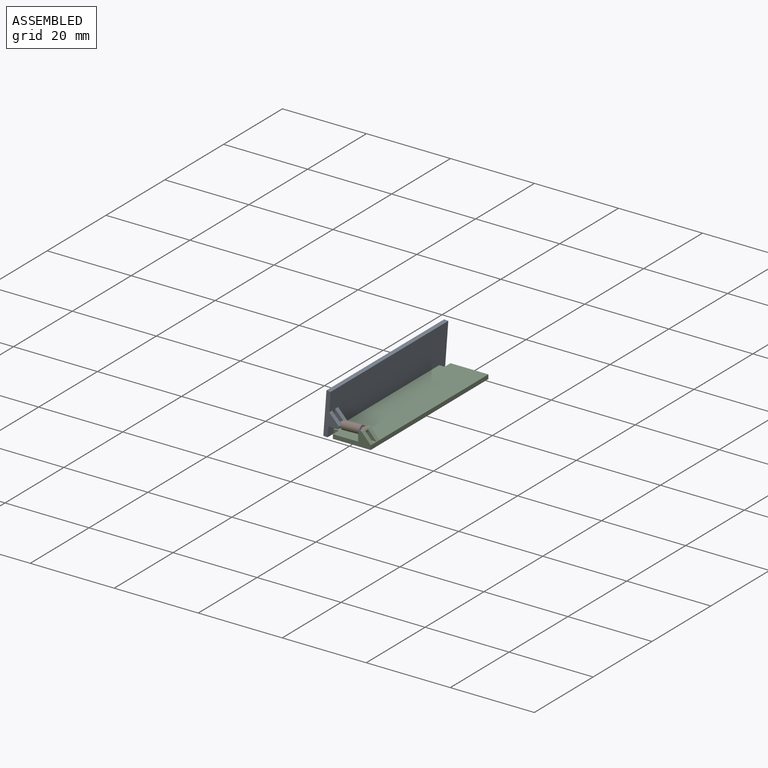
[diagram: assembled view]
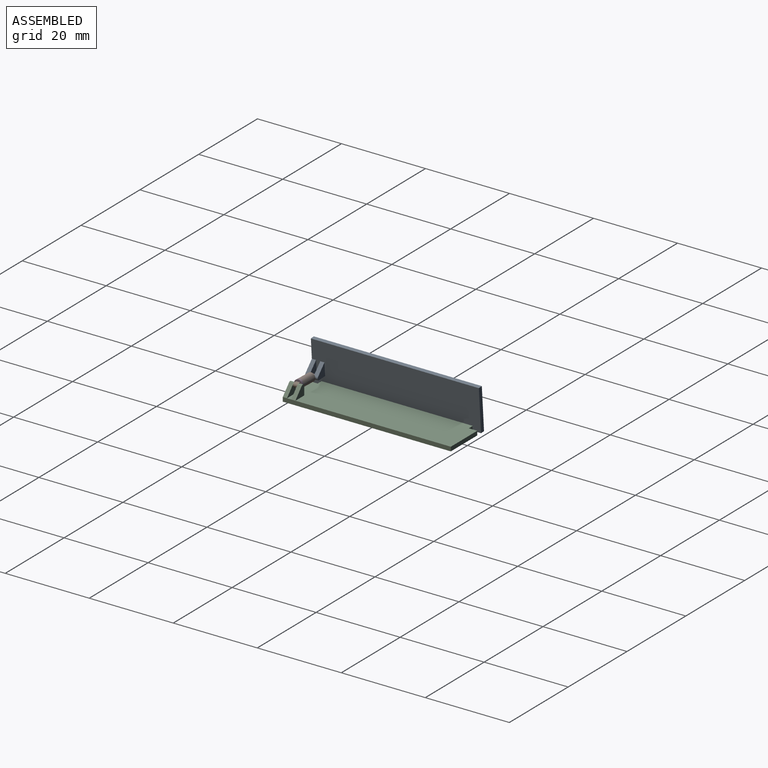
[diagram: assembled view, second angle]
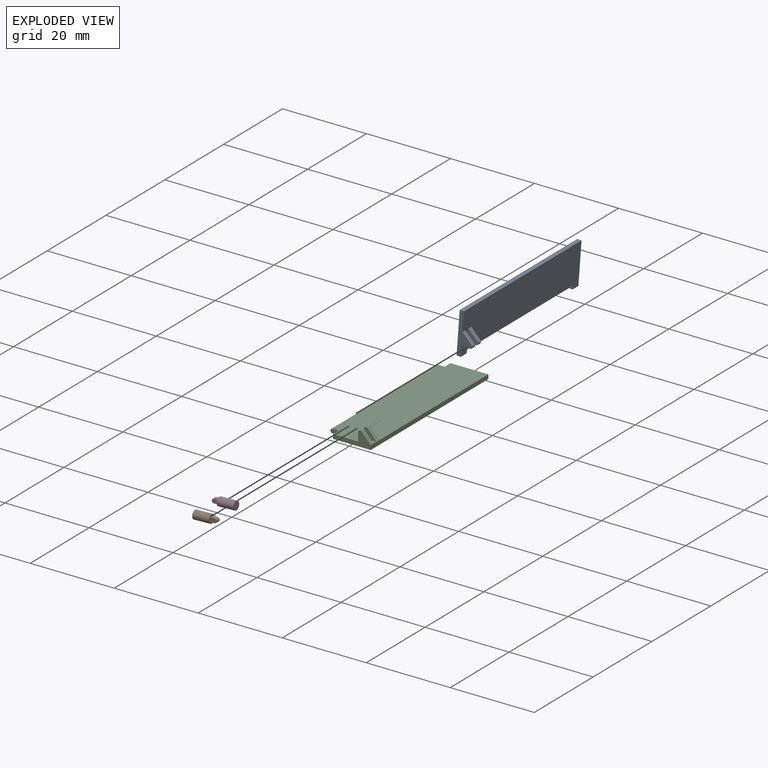
[diagram: exploded view]
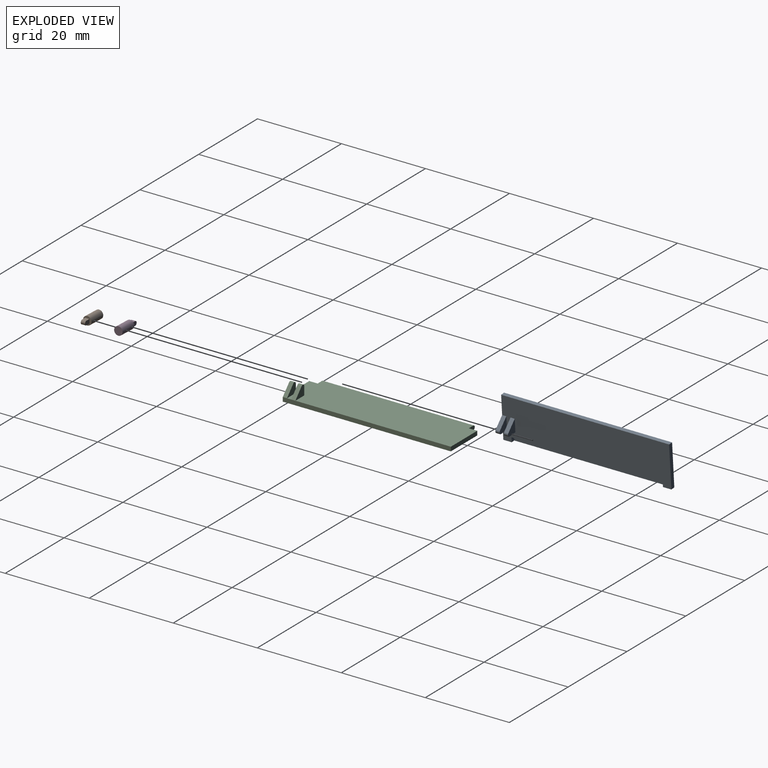
[diagram: exploded view, second angle]
ASSEMBLY  parts=4 mates=6
PART A: 20 faces, bbox 10x40x3.5 mm
  f0: plane 40x10mm, normal (0,0,1), area 354.4mm2, adj f1,f2,f3,f5,f8,f9,f10,f11
  f1: plane 40x1mm, normal (1,0,0), area 9.4mm2, adj f0,f3,f4,f7,f8,f9,f10
  f2: plane 40x1mm, normal (-1,0,0), area 40mm2, adj f0,f3,f4,f9
  f3: plane 10x3.5mm, normal (0,-1,0), area 14.6mm2, adj f0,f1,f2,f4,f11,f12,f13
  f4: plane 40x10mm, normal (0,0,-1), area 400mm2, adj f1,f2,f3,f9
  f5: plane 36x0.25mm, normal (1,0,0), area 9mm2, adj f0,f6,f8,f10
  f6: cylinder r=0.6mm len=36mm, axis (0,-1,0), area 33.9mm2, adj f5,f7,f8,f10
  f7: plane 36x0.5mm, normal (0,0,1), area 18mm2, adj f1,f6,f8,f10
  f8: plane 1.1x0.85mm, normal (0,1,0), area 0.9mm2, adj f0,f1,f5,f6,f7
  f9: plane 10x1mm, normal (0,1,0), area 10mm2, adj f0,f1,f2,f4
  f10: plane 1.1x0.85mm, normal (0,-1,0), area 0.9mm2, adj f0,f1,f5,f6,f7
  f11: plane 2x1mm, normal (1,0,0), area 2mm2, adj f0,f3,f12,f14
  f12: cylinder r=0.5mm len=1mm, axis (0,-1,0), area 1.2mm2, adj f3,f11,f13,f14
  f13: plane 2.34x2.13mm, normal (-0.74,0,0.67), area 3.2mm2, adj f0,f3,f12,f14
  f14: plane 3x2.5mm, normal (0,1,0), area 4.6mm2, adj f0,f11,f12,f13
  f15: plane 2.34x2.13mm, normal (-0.74,0,0.67), area 3.2mm2, adj f0,f16,f18,f19
  f16: cylinder r=0.5mm len=1mm, axis (0,-1,0), area 1.2mm2, adj f15,f17,f18,f19
  f17: plane 2x1mm, normal (1,0,0), area 2mm2, adj f0,f16,f18,f19
  f18: plane 3x2.5mm, normal (0,1,0), area 4.6mm2, adj f0,f15,f16,f17
  f19: plane 3x2.5mm, normal (0,-1,0), area 4.6mm2, adj f0,f15,f16,f17
PART B: 8 faces, bbox 2x5.5x2 mm
  f0: plane 2x2mm, normal (0,1,0), area 2.1mm2, adj f1,f4,f5,f6,f7
  f1: cylinder r=1mm len=4mm, axis (0,1,0), area 25.1mm2, adj f0,f2
  f2: plane 2x2mm, normal (0,-1,0), area 3.1mm2, adj f1
  f3: cylinder r=0.5mm len=1mm, axis (-1,0,0), area 1.6mm2, adj f4,f5,f6,f7
  f4: plane 1x1mm, normal (0,0,1), area 1mm2, adj f0,f3,f6,f7
  f5: plane 1x1mm, normal (0,0,-1), area 1mm2, adj f0,f3,f6,f7
  f6: plane 1.5x1mm, normal (1,0,0), area 1.4mm2, adj f0,f3,f4,f5
  f7: plane 1.5x1mm, normal (-1,0,0), area 1.4mm2, adj f0,f3,f4,f5
PART C: 19 faces, bbox 11x40x3.5 mm
  f0: plane 40x10.5mm, normal (0,0,1), area 408mm2, adj f1,f2,f4,f5,f6,f7,f8,f9
  f1: plane 9x3.5mm, normal (0,-1,0), area 13.6mm2, adj f0,f2,f3,f5,f10,f11,f12
  f2: plane 40x1mm, normal (1,0,0), area 40mm2, adj f0,f1,f3,f7,f12,f15
  f3: plane 40x10.5mm, normal (0,0,-1), area 414mm2, adj f1,f2,f4,f5,f6,f7,f8,f9
  f4: cylinder r=0.5mm len=36mm, axis (0,-1,0), area 56.5mm2, adj f0,f3,f6,f9
  f5: plane 2x1mm, normal (-1,0,0), area 2mm2, adj f0,f1,f3,f6
  f6: plane 2x1mm, normal (0,-1,0), area 1.9mm2, adj f0,f3,f4,f5
  f7: plane 9x1mm, normal (0,1,0), area 9mm2, adj f0,f2,f3,f8
  f8: plane 2x1mm, normal (-1,0,0), area 2mm2, adj f0,f3,f7,f9
  f9: plane 2x1mm, normal (0,1,0), area 1.9mm2, adj f0,f3,f4,f8
  f10: cylinder r=0.5mm len=1mm, axis (0,-1,0), area 1.2mm2, adj f1,f11,f12,f13
  f11: plane 2x1mm, normal (-1,0,0), area 2mm2, adj f0,f1,f10,f13
  f12: plane 2.34x2.13mm, normal (0.74,0,0.67), area 3.2mm2, adj f1,f2,f10,f13
  f13: plane 3x2.5mm, normal (0,1,0), area 4.6mm2, adj f0,f10,f11,f12
  f14: cylinder r=0.5mm len=1mm, axis (0,-1,0), area 1.2mm2, adj f15,f16,f17,f18
  f15: plane 2.34x2.13mm, normal (0.74,0,0.67), area 3.2mm2, adj f2,f14,f17,f18
  f16: plane 2x1mm, normal (-1,0,0), area 2mm2, adj f0,f14,f17,f18
  f17: plane 3x2.5mm, normal (0,1,0), area 4.6mm2, adj f0,f14,f15,f16
  f18: plane 3x2.5mm, normal (0,-1,0), area 4.6mm2, adj f0,f14,f15,f16
PART D: same geometry as B
PLACE A rot(axis=(0,1,0),94.3deg) t=(-5.3,-20.27,9.03)mm
PLACE B rot(axis=(0.02,-0.02,-1),90deg) t=(1.74,-18.77,1.97)mm
PLACE C t=(-4.76,-20.27,-1)mm
PLACE D rot(axis=(-0.71,0.71,-0.01),178.7deg) t=(-1.83,-18.77,1.86)mm
MATE planar B.f3 <-> C.f10  axis (0,1,0) through (2.74,-18.27,2)mm
MATE slider D.f1 <-> B.f1  axis (-1,0,-0.03) through (0.17,-18.77,1.92)mm
MATE cylindrical C.f10 <-> B.f3  axis (0,-1,0) through (2.74,-18.27,2)mm
MATE planar A.f3 <-> C.f1  axis (0,-1,0) through (-4.74,-20.27,3.52)mm
MATE revolute C.f4 <-> A.f6  axis (0,-1,0) through (-5.26,-18.27,-0.5)mm
MATE cylindrical A.f12 <-> D.f3  axis (0,-1,0) through (-2.83,-18.27,1.82)mm
